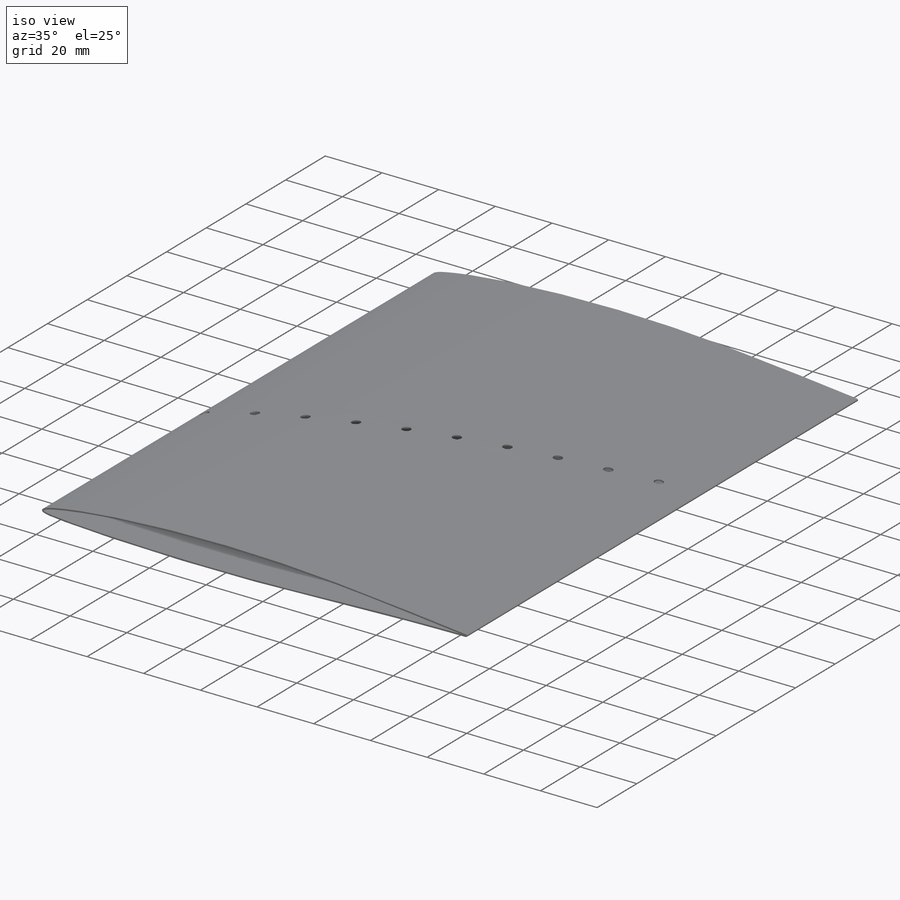
[diagram: iso view]
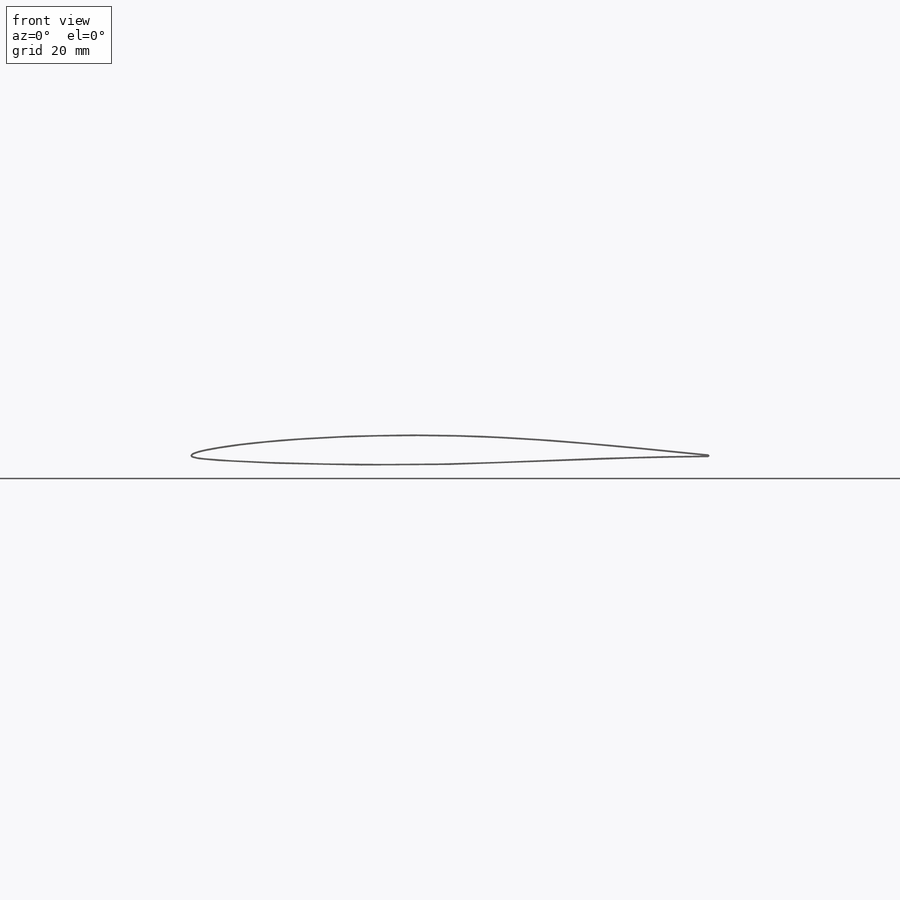
[diagram: front view]
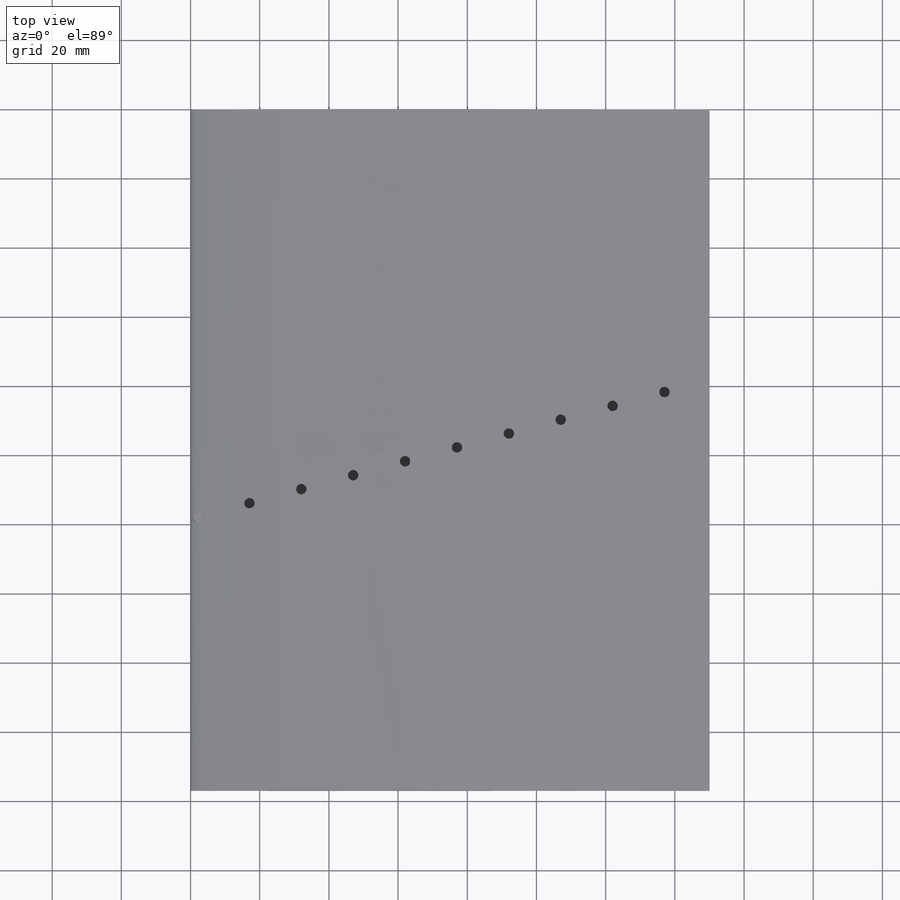
[diagram: top view]
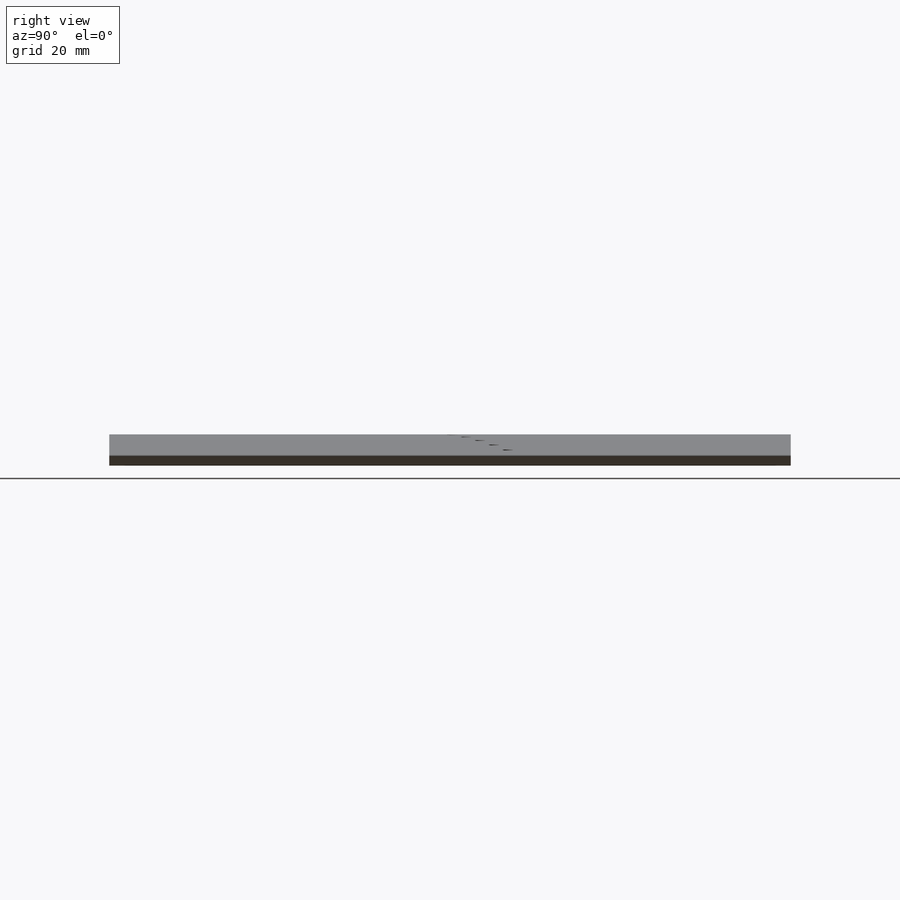
[diagram: right view]
SOLIDWORKS PART (.sldprt)
format: sldprt  version: not decoded by parser v0  size: 462,848 bytes
history: native  units: mm
features: plane x16, sketch x4, material x1, extrude x1, shell x1, hole x1 (+10 scaffold rows collapsed)
feature tree (34):
  scaffold x10  (default folders/planes/origin — collapsed)
  material  "Material <nicht festgelegt>"
  plane  "Ebene vorne"
  plane  "Ebene oben"
  plane  "Ebene rechts"
  sketch  "Skizze1"
  extrude  "Aufsatz-Linear austragen1"  Depth=197mm
  shell  "Wandung1"  Thickness=0.5mm
  plane  "Ebene1"
  plane  "Ebene2"  Offset=150mm
  plane  "2mm"  Offset=2mm
  plane  "17mm"  Offset=15mm
  plane  "32mm"  Offset=15mm
  plane  "47mm"  Offset=30mm
  plane  "62mm"  Offset=45mm
  plane  "77mm"  Offset=60mm
  plane  "92mm"  Offset=75mm
  plane  "107mm"  Offset=90mm
  plane  "122mm"  Offset=105mm
  plane  "137mm"  Offset=120mm
  sketch  "Skizze4"  dims[c1.D1=~150.001102mm c2.D1=15.0deg c2.D2=~7.991078mm c3.D1=~77.28989mm c4.D1=15.0deg]
  plane  "Ebene3"
  hole  "Ø3.0 (3) Durchmesser Bohrung3"  Diameter=3mm Depth=1mm
  sketch  "3D-Skizze1"
  sketch  "Skizze6"  dims[hole-wizard template sketch: 46 standard entries collapsed; hole parameters kept: c15.Bohrerdurchmesser=3.0mm c15.Bohrungstiefe=1.0mm c15.D3=~14.816244mm c15.Spitzenwinkel=118.0deg]
decode coverage: 5 of 7 modeling features carry decoded parameters
note: ~ marks probable driven/reference dimensions
note: suppression state not decoded; provenance and decode notes live in map.json
